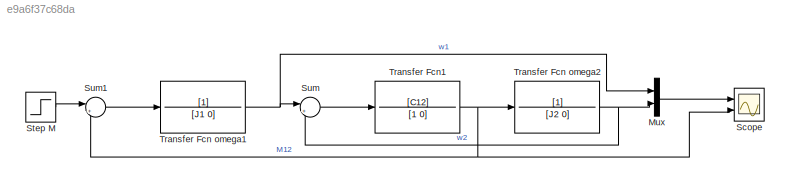
MODEL slx_e9a6f37c68da
KIND model
CONFIG AbsTol = auto
CONFIG EnableMultiTasking = off
CONFIG FixedStep = auto
CONFIG MaxStep = 1e-4
CONFIG MinStep = auto
CONFIG RelTol = 1e-3
CONFIG SampleTimeConstraint = Unconstrained
CONFIG SolverName = VariableStepAuto
CONFIG StartTime = 0.0
CONFIG StopTime = 0.2
BLOCK [Mux] Mux
  DisplayOption = bar
  Inputs = 2
  Ports = [2, 1]
BLOCK [Scope] Scope
  Floating = off
  NumInputPorts = 2
  Ports = [2]
  ScopeSpecificationString = Simulink.scopes.TimeScopeBlockCfg('CurrentConfiguration', extmgr.ConfigurationSet(extmgr.Configuration('Core','General UI',true),extmgr.Configuration('Core','Source UI',true),extmgr.Configuration('Sources','WiredSimulink',true),extmgr.Configuration('Visuals','Time Domain',true,'SerializedDisplays',{struct('MinYLimReal','-3.29231','MaxYLimReal','29.63076','YLabelReal','','MinYLimMag','0.00000','Max...<+2025ch>
BLOCK [Step] Step M
  After = M1
  SampleTime = 0
  Time = 0
BLOCK [Sum] Sum
  Inputs = |+-
  Ports = [2, 1]
BLOCK [Sum] Sum1
  Inputs = |+-
  Ports = [2, 1]
BLOCK [TransferFcn] Transfer Fcn omega1
  Denominator = [J1 0]
BLOCK [TransferFcn] Transfer Fcn omega2
  Denominator = [J2 0]
BLOCK [TransferFcn] Transfer Fcn1
  Denominator = [1 0]
  Numerator = [C12]
LINE Mux:1 -> Scope:1
LINE Step M:1 -> Sum1:1
LINE Sum1:1 -> Transfer Fcn omega1:1
LINE Sum:1 -> Transfer Fcn1:1
NET Transfer Fcn omega1:1 -> Mux:1, Sum:1
NET Transfer Fcn omega2:1 -> Mux:2, Sum:2
NET Transfer Fcn1:1 -> Scope:2, Sum1:2, Transfer Fcn omega2:1
note: NET lines group one-source signal fan-out (src -> all destinations, sorted); 1:1 wires keep LINE
